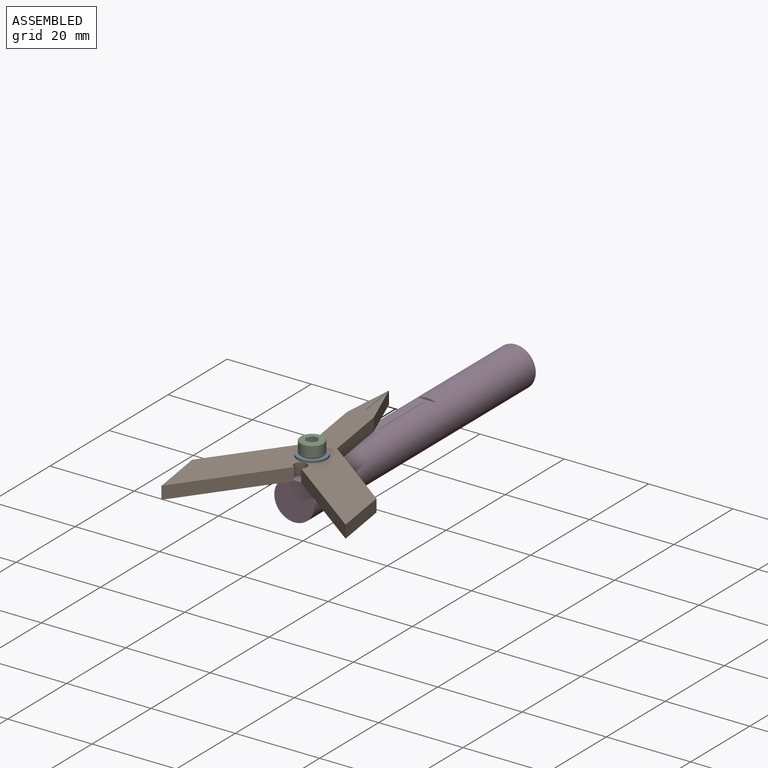
[diagram: assembled view]
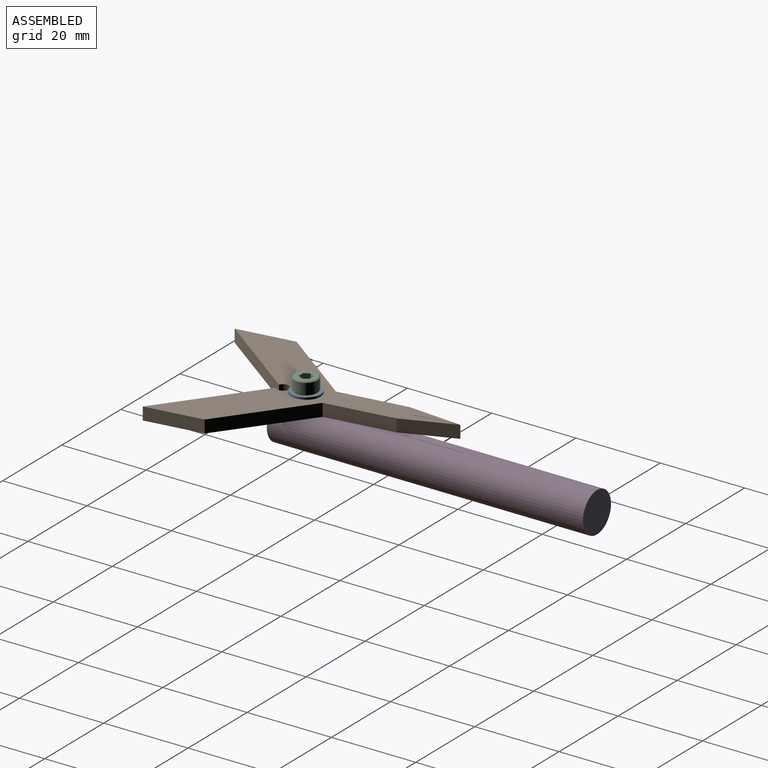
[diagram: assembled view, second angle]
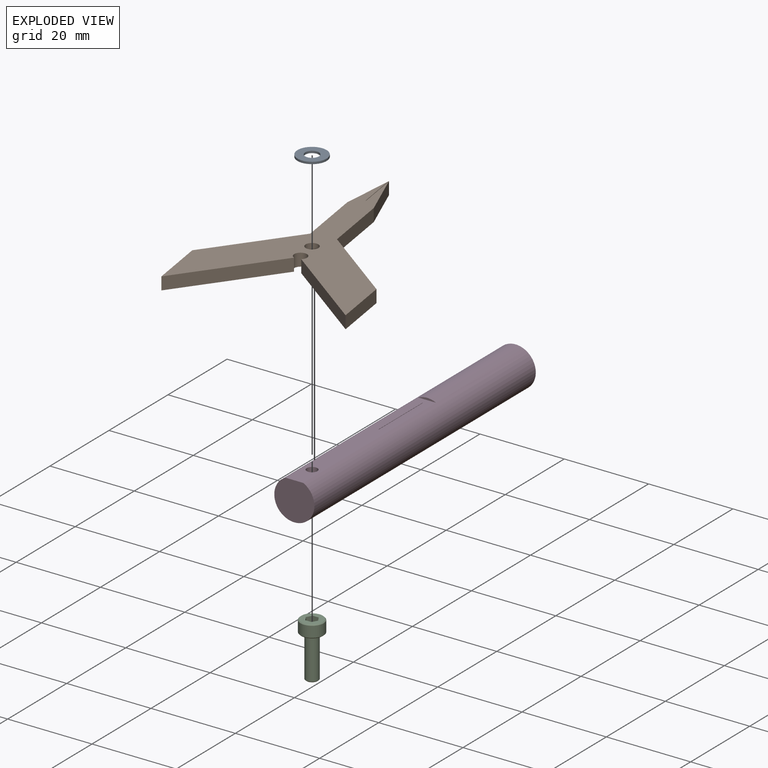
[diagram: exploded view]
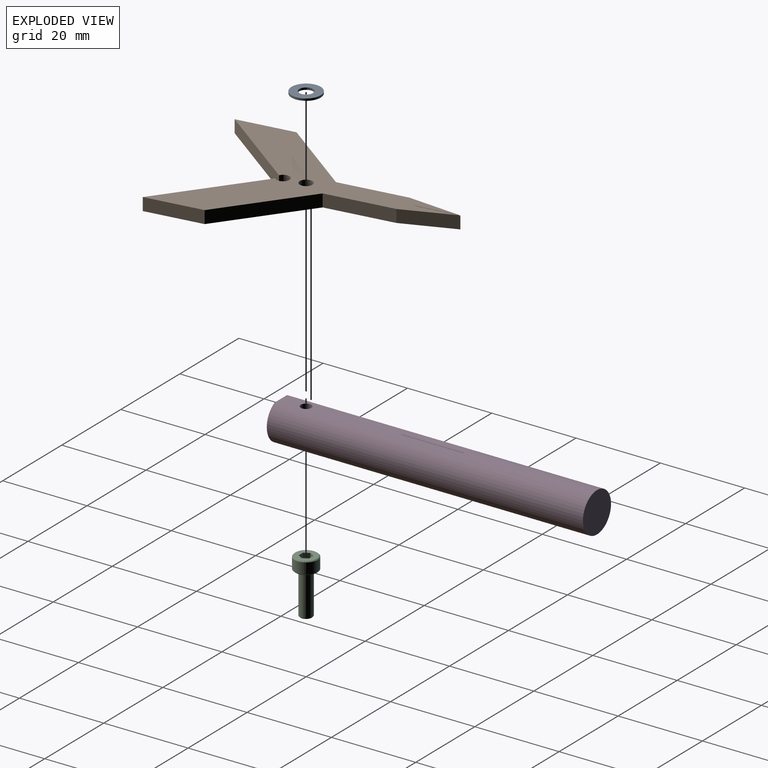
[diagram: exploded view, second angle]
ASSEMBLY  parts=4 mates=6
PART A: 4 faces, bbox 6.9x6.9x0.5 mm
  f0: cylinder r=1.62mm len=3.25mm, axis (0,0,-1), area 5.1mm2, adj f2,f3
  f1: cylinder r=3.45mm len=6.9mm, axis (0,0,-1), area 10.8mm2, adj f2,f3
  f2: plane 6.9x6.9mm, normal (0,0,1), area 29.1mm2, adj f0,f1
  f3: plane 6.9x6.9mm, normal (0,0,-1), area 29.1mm2, adj f0,f1
PART B: 20 faces, bbox 40x59x3 mm
  f0: plane 58.79x40mm, normal (0,0,1), area 643.6mm2, adj f2,f3,f4,f5,f6,f7,f8,f9
  f1: plane 0.1x0.05mm, normal (0,0,1), area 0mm2, adj f2,f5,f16
  f2: plane 12.47x3mm, normal (0.97,-0.23,0), area 38.4mm2, adj f0,f1,f5,f6,f12,f16,f17,f18
  f3: plane 19.22x19.22mm, normal (-0.71,0.71,0), area 81.5mm2, adj f0,f8,f12,f14
  f4: plane 19.22x19.22mm, normal (0.71,0.71,0), area 81.5mm2, adj f0,f9,f12,f14
  f5: plane 12.47x3mm, normal (-0.97,-0.23,0), area 38.4mm2, adj f0,f1,f2,f11,f12,f15,f16,f17
  f6: plane 16x3mm, normal (1,0,0), area 48mm2, adj f0,f2,f7,f12
  f7: plane 17.1x17.1mm, normal (0.71,-0.71,0), area 72.5mm2, adj f0,f6,f8,f12
  f8: plane 13.44x3mm, normal (1,0,0), area 40.3mm2, adj f0,f3,f7,f12
  f9: plane 13.44x3mm, normal (-1,0,0), area 40.3mm2, adj f0,f4,f10,f12
  f10: plane 17.1x17.1mm, normal (-0.71,-0.71,0), area 72.5mm2, adj f0,f9,f11,f12
  f11: plane 16x3mm, normal (-1,0,0), area 48mm2, adj f0,f5,f10,f12
  f12: plane 59x40mm, normal (0,0,-1), area 644.6mm2, adj f2,f3,f4,f5,f6,f7,f8,f9
  f13: cylinder r=1.5mm len=3mm, axis (0,0,1), area 28.3mm2, adj f0,f12
  f14: cylinder r=1.5mm len=3mm, axis (0,0,1), area 23.3mm2, adj f0,f3,f4,f12
  f15: plane 9.89x0.1mm, normal (1,0,0), area 1mm2, adj f0,f5,f17,f19
  f16: plane 0.1x0.05mm, normal (0,1,0), area 0mm2, adj f1,f2,f5,f17
  f17: plane 10x0.1mm, normal (0,0,1), area 1mm2, adj f2,f5,f15,f16,f18,f19
  f18: plane 9.89x0.1mm, normal (-1,0,0), area 1mm2, adj f0,f2,f17,f19
  f19: plane 0.1x0.1mm, normal (0,-1,0), area 0mm2, adj f0,f15,f17,f18
PART C: 15 faces, bbox 5.5x5.5x13 mm
  f0: plane 5.1x5.1mm, normal (0,0,1), area 13.4mm2, adj f3,f13
  f1: cylinder r=2.75mm len=5.5mm, axis (0,0,-1), area 44.9mm2, adj f12,f13
  f2: plane 5.1x5.1mm, normal (0,0,-1), area 15mm2, adj f5,f6,f7,f8,f9,f10,f12
  f3: cylinder r=1.5mm len=9.8mm, axis (0,0,-1), area 92.4mm2, adj f0,f14
  f4: plane 2.6x2.6mm, normal (0,0,1), area 5.3mm2, adj f14
  f5: plane 4x1.25mm, normal (0.87,-0.5,0), area 5.8mm2, adj f2,f6,f10,f11
  f6: plane 4x1.25mm, normal (0.87,0.5,0), area 5.8mm2, adj f2,f5,f7,f11
  f7: plane 4x1.44mm, normal (0,1,0), area 5.8mm2, adj f2,f6,f8,f11
  f8: plane 4x1.25mm, normal (-0.87,0.5,0), area 5.8mm2, adj f2,f7,f9,f11
  f9: plane 4x1.25mm, normal (-0.87,-0.5,0), area 5.8mm2, adj f2,f8,f10,f11
  f10: plane 4x1.44mm, normal (0,-1,0), area 5.8mm2, adj f2,f5,f9,f11
  f11: plane 2.89x2.5mm, normal (0,0,-1), area 5.4mm2, adj f5,f6,f7,f8,f9,f10
  f12: cone r=2.75mm half-angle=45deg, axis (0,0,1), area 4.7mm2, adj f1,f2
  f13: cone r=2.55mm half-angle=45deg, axis (0,0,-1), area 4.7mm2, adj f0,f1
  f14: cone r=1.3mm half-angle=45deg, axis (0,0,-1), area 2.5mm2, adj f3,f4
PART D: 12 faces, bbox 9.5x75x9.5 mm
  f0: plane 45x4.25mm, normal (0,0,1), area 184.8mm2, adj f1,f3,f4,f5,f7,f8,f9,f10
  f1: cylinder r=4.76mm len=75mm, axis (0,-1,0), area 2046.1mm2, adj f0,f2,f3,f4
  f2: plane 9.53x9.53mm, normal (0,1,0), area 71.3mm2, adj f1
  f3: plane 9.53x9.03mm, normal (0,-1,0), area 69.8mm2, adj f0,f1
  f4: plane 4.25x0.5mm, normal (0,-1,0), area 1.4mm2, adj f0,f1
  f5: cylinder r=1.25mm len=6.5mm, axis (0,0,1), area 51.1mm2, adj f0,f6
  f6: cone r=0mm half-angle=59deg, axis (0,0,1), area 5.7mm2, adj f5
  f7: plane 0.1x0.1mm, normal (0,1,0), area 0mm2, adj f0,f8,f10,f11
  f8: plane 15x0.1mm, normal (-1,0,0), area 1.5mm2, adj f0,f7,f9,f11
  f9: plane 0.1x0.1mm, normal (0,-1,0), area 0mm2, adj f0,f8,f10,f11
  f10: plane 15x0.1mm, normal (1,0,0), area 1.5mm2, adj f0,f7,f9,f11
  f11: plane 15x0.1mm, normal (0,0,1), area 1.5mm2, adj f7,f8,f9,f10
PLACE A rot(axis=(0,0,-1),1.4deg) t=(0,6,7.26)mm
PLACE B rot(axis=(0,0,-1),171.5deg) t=(-53.31,10.78,7.26)mm
PLACE C rot(axis=(1,0,0),180deg) t=(0,6,10.76)mm
PLACE D at identity fixed
MATE planar B.f13 <-> A.f0  axis (0,0,1) through (0,6,7.26)mm
MATE planar B.f13 <-> D.f5  axis (0,0,-1) through (0,6,4.26)mm
MATE cylindrical D.f5 <-> B.f13  axis (0,0,1) through (0,6,4.26)mm
MATE cylindrical C.f1 <-> A.f0  axis (0,0,-1) through (0,6,7.76)mm
MATE cylindrical D.f5 <-> C.f1  axis (0,0,1) through (0,6,4.26)mm
MATE revolute C.f1 <-> A.f0  axis (0,0,1) through (0,6,7.76)mm
